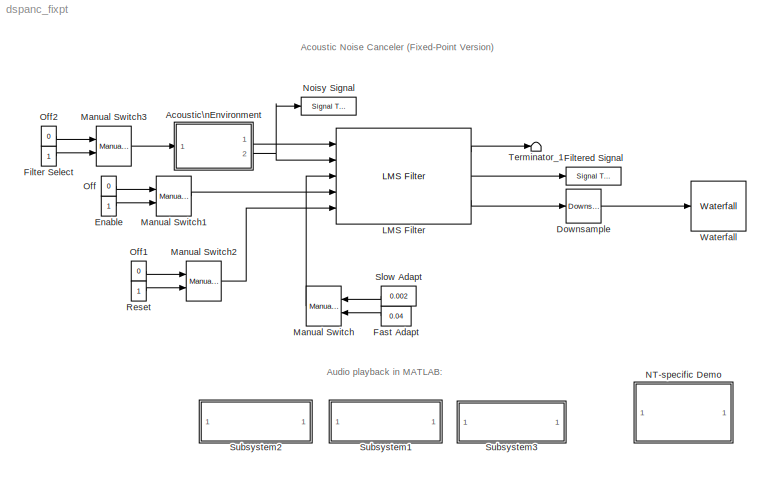
MODEL dspanc_fixpt
KIND model
CONFIG StopFcn = if exist('y_filtered','var'),                                                                      \n    soundsc(y_filtered,8000);                                                           \nelse uiwait(errordlg('You must run the simulation first.','Signal Processing Blockset Demo Error','modal'));\nend
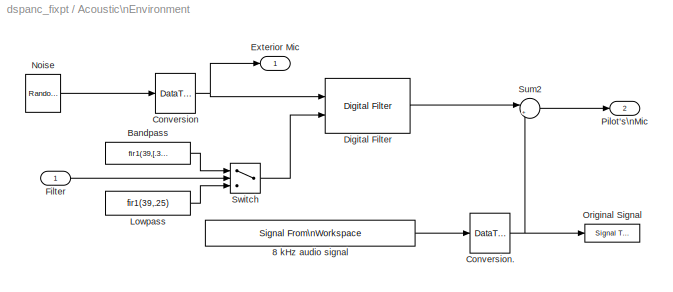
BLOCK [SubSystem] Acoustic\nEnvironment
  MinAlgLoopOccurrences = off
  Ports = [1, 2]
  PropExecContextAcrossSSBoundary = on
  RTWSystemCode = Auto
  TreatAsAtomicUnit = off
BLOCK [Reference] Acoustic\nEnvironment/8 kHz audio signal  REF=dspsrcs4/Signal From\nWorkspace
  OutputAfterFinalValue = Cyclic repetition
  Ports = [0, 1]
  ShowPortLabels = on
  SourceBlock = dspsrcs4/Signal From\nWorkspace
  SourceType = Signal From Workspace
  Ts = 1/8000
  X = int16((2^15)*(wavread('dspafxf_8000.wav')))
  nsamps = 32
BLOCK [Constant] Acoustic\nEnvironment/Bandpass
  OutDataTypeMode = Specify via dialog
  OutScaling = 2^-17
  Value = fir1(39,[.3 .5])
BLOCK [DataTypeConversion] Acoustic\nEnvironment/Conversion
  OutDataTypeMode = Specify via dialog
  OutScaling = 2^-13
  RndMeth = Nearest
  SaturateOnIntegerOverflow = off
BLOCK [DataTypeConversion] Acoustic\nEnvironment/Conversion.
  ConvertRealWorld = Stored Integer (SI)
  OutDataTypeMode = Specify via dialog
  OutScaling = 2^-15
  RndMeth = Nearest
  SaturateOnIntegerOverflow = off
BLOCK [Reference] Acoustic\nEnvironment/Digital Filter  REF=dsparch4/Digital Filter
  AllPoleFiltStruct = Direct form
  BiQuadCoeffs = [1 0.3 0.4 1 0.1 0.2]
  CoeffSource = Input port(s)
  DenCoeffs = [1 0.1]
  DialogController = dspDDGCreate
  DialogControllerArgs = DataTag0
  FIRFiltStruct = Direct form
  FiltPerSampPopup = One filter per frame
  IC = 0
  ICden = 0
  ICnum = 0
  IIRFiltStruct = Direct form II transposed
  LatticeCoeffs = [0.2 0.4]
  NumCoeffs = [1 2]
  Ports = [2, 1]
  ScaleValues = 0
  SourceBlock = dsparch4/Digital Filter
  SourceType = Digital Filter
  TypePopup = FIR (all zeros)
  accumFracLength = 30
  accumMode = Binary point scaling
  accumWordLength = 32
  additionalParams = on
  allowOverrides = on
  denIgnore = on
  firstCoeffFracLength = 15
  firstCoeffMode = Same word length as input
  firstCoeffWordLength = 16
  memoryFracLength = 14
  memoryMode = Same as input
  memoryWordLength = 16
  outputFracLength = 30
  outputMode = Same as input
  outputWordLength = 32
  overflowMode = off
  prodOutputFracLength = 30
  prodOutputMode = Binary point scaling
  prodOutputWordLength = 32
  roundingMode = Nearest
  scaleValueFracLength = 14
  secondCoeffFracLength = 15
  secondCoeffMode = Same as numerator
  secondCoeffWordLength = 16
  showAcc = on
  showCoeff = off
  showMem = off
  showMpy = on
  showOut = on
  stageIOMode = Same as input
  stageIOWordLength = 16
  stageInFracLength = 15
  stageOutFracLength = 15
  tapSumFracLength = 30
  tapSumMode = Same as input
  tapSumWordLength = 32
  thirdCoeffFracLength = 15
  thirdCoeffMode = Same as input
  thirdCoeffWordLength = 16
BLOCK [Outport] Acoustic\nEnvironment/Exterior Mic
  BusOutputAsStruct = off
  IconDisplay = Port number
BLOCK [Inport] Acoustic\nEnvironment/Filter
  IconDisplay = Port number
  LatchInput = off
BLOCK [Constant] Acoustic\nEnvironment/Lowpass
  OutDataTypeMode = Specify via dialog
  OutScaling = 2^-17
  Value = fir1(39,.25)
BLOCK [Reference] Acoustic\nEnvironment/Noise  REF=dspsrcs4/Random\nSource
  CltLength = 5
  DataType = Single
  Diagnostics = AllowInheritedTsInSrc
  Inherit = off
  Max = 1
  Mean = 0
  Min = -1
  NormMethod = Sum of uniform values
  OutComplex = Real
  Ports = [0, 1]
  RepMode = Specify seed
  SampFrame = 32
  SampMode = Discrete
  SampTime = 1/8000
  SourceBlock = dspsrcs4/Random\nSource
  SourceType = Random Source
  SrcType = Gaussian
  Var = 1
  rawSeed = [23341]
BLOCK [Reference] Acoustic\nEnvironment/Original Signal  REF=dspsnks4/Signal To\nWorkspace
  Decimation = 1
  FixptAsFi = off
  FrameMode = Concatenate frames (2-D array)
  MaxDataPoints = inf
  Ports = [1]
  ShowPortLabels = on
  SourceBlock = dspsnks4/Signal To\nWorkspace
  SourceType = Signal To Workspace
  VariableName = y_org
BLOCK [Outport] Acoustic\nEnvironment/Pilot's\nMic
  BusOutputAsStruct = off
  IconDisplay = Port number
  Port = 2
BLOCK [Sum] Acoustic\nEnvironment/Sum2
  IconShape = round
  InputSameDT = off
  Inputs = |++
  Ports = [2, 1]
  RndMeth = Nearest
BLOCK [Switch] Acoustic\nEnvironment/Switch
  Criteria = u2 ~= 0
  InputSameDT = off
BLOCK [Reference] Downsample  REF=dspsigops/Downsample
  N = 32
  Ports = [1, 1]
  SourceBlock = dspsigops/Downsample
  SourceType = Downsample
  fmode = Maintain input frame size
  ic = 0
  phase = 0
  smode = Allow multirate
BLOCK [Constant] Enable
  OutDataTypeMode = boolean
BLOCK [Constant] Fast Adapt
  OutDataTypeMode = Specify via dialog
  OutScaling = 2^-15
  Value = 0.04
BLOCK [Constant] Filter Select
  OutDataTypeMode = boolean
BLOCK [Reference] Filtered Signal  REF=dspsnks4/Signal To\nWorkspace
  Decimation = 1
  FixptAsFi = off
  FrameMode = Concatenate frames (2-D array)
  MaxDataPoints = inf
  Ports = [1]
  ShowPortLabels = on
  SourceBlock = dspsnks4/Signal To\nWorkspace
  SourceType = Signal To Workspace
  VariableName = y_filtered
BLOCK [Reference] LMS Filter  REF=dspadpt3/LMS Filter
  Adapt = on
  Algo = Normalized LMS
  DialogController = dspDDGCreate
  DialogControllerArgs = DataTag1
  L = 40
  Ports = [5, 3]
  ShowPortLabels = off
  SourceBlock = dspadpt3/LMS Filter
  SourceType = LMS Filter
  accum2FracLength = 20
  accum2Mode = User-defined
  accumFracLength = 20
  accumMode = Binary point scaling
  accumWordLength = 32
  addnparflag = off
  firstCoeffFracLength = 16
  firstCoeffMode = Binary point scaling
  firstCoeffWordLength = 16
  ic = 0
  leakage = 1.0
  memoryFracLength = 15
  memoryMode = Binary point scaling
  memoryWordLength = 16
  mu = 0.1
  overflowMode = on
  prodOutput2FracLength = 20
  prodOutput2Mode = Same as first product
  prodOutput3FracLength = 20
  prodOutput3Mode = Same as first product
  prodOutput4FracLength = 20
  prodOutput4Mode = Same as first product
  prodOutputFracLength = 20
  prodOutputMode = Binary point scaling
  prodOutputWordLength = 32
  quotientFracLength = 20
  quotientMode = Same as first product
  resetflag = Non-zero sample
  roundingMode = Nearest
  secondCoeffFracLength = 15
  secondCoeffMode = User-defined
  secondCoeffWordLength = 2
  stepflag = Input port
  weights = on
BLOCK [Reference] Manual Switch  REF=simulink/Signal\nRouting/Manual Switch
  Ports = [2, 1]
  ShowPortLabels = on
  SourceBlock = simulink/Signal\nRouting/Manual Switch
  SourceType = Manual Switch
  action = 0
  sw = 0
BLOCK [Reference] Manual Switch1  REF=simulink/Signal\nRouting/Manual Switch
  Ports = [2, 1]
  ShowPortLabels = on
  SourceBlock = simulink/Signal\nRouting/Manual Switch
  SourceType = Manual Switch
  action = 0
  sw = 0
BLOCK [Reference] Manual Switch2  REF=simulink/Signal\nRouting/Manual Switch
  Ports = [2, 1]
  ShowPortLabels = on
  SourceBlock = simulink/Signal\nRouting/Manual Switch
  SourceType = Manual Switch
  action = 0
  sw = 1
BLOCK [Reference] Manual Switch3  REF=simulink/Signal\nRouting/Manual Switch
  Ports = [2, 1]
  ShowPortLabels = on
  SourceBlock = simulink/Signal\nRouting/Manual Switch
  SourceType = Manual Switch
  action = 0
  sw = 1
BLOCK [SubSystem] NT-specific Demo
  MaskDisplay = disp('PC/Windows\\nDemo')
  MaskIconFrame = on
  MaskIconOpaque = on
  MaskIconRotate = none
  MaskIconUnits = autoscale
  MaskType = NT-only Demo
  MinAlgLoopOccurrences = off
  OpenFcn = dspanc_fixpt_win32
  Ports = []
  PropExecContextAcrossSSBoundary = on
  RTWSystemCode = Auto
  TreatAsAtomicUnit = off
BLOCK [Reference] Noisy Signal  REF=dspsnks4/Signal To\nWorkspace
  Decimation = 1
  FixptAsFi = off
  FrameMode = Concatenate frames (2-D array)
  MaxDataPoints = inf
  Ports = [1]
  ShowPortLabels = on
  SourceBlock = dspsnks4/Signal To\nWorkspace
  SourceType = Signal To Workspace
  VariableName = y_noisy
BLOCK [Constant] Off
  OutDataTypeMode = boolean
  Value = 0
BLOCK [Constant] Off1
  OutDataTypeMode = boolean
  Value = 0
BLOCK [Constant] Off2
  OutDataTypeMode = boolean
  Value = 0
BLOCK [Constant] Reset
  OutDataTypeMode = boolean
BLOCK [Constant] Slow Adapt
  OutDataTypeMode = Specify via dialog
  OutScaling = 2^-15
  Value = 0.002
BLOCK [SubSystem] Subsystem1
  MaskDisplay = disp('Noisy\\nSignal')
  MaskIconFrame = on
  MaskIconOpaque = on
  MaskIconRotate = none
  MaskIconUnits = autoscale
  MinAlgLoopOccurrences = off
  OpenFcn = if exist('y_noisy','var'), soundsc(y_noisy,8000); else uiwait(errordlg('You must run the simulation first.','Signal Processing Blockset Demo Error','modal')); end
  Ports = []
  PropExecContextAcrossSSBoundary = on
  RTWSystemCode = Auto
  TreatAsAtomicUnit = off
BLOCK [SubSystem] Subsystem2
  MaskDisplay = disp('Original\\nSignal')
  MaskIconFrame = on
  MaskIconOpaque = on
  MaskIconRotate = none
  MaskIconUnits = autoscale
  MinAlgLoopOccurrences = off
  OpenFcn = \nif exist('y_org','var'), soundsc(double(y_org)); else uiwait(errordlg('Data not found in workspace - run demo model.','Signal Processing Blockset Demo Error','modal'));end\n                                                                                                                                                                           \n                                                    ...<+294ch>
  Ports = []
  PropExecContextAcrossSSBoundary = on
  RTWSystemCode = Auto
  TreatAsAtomicUnit = off
BLOCK [SubSystem] Subsystem3
  MaskDisplay = disp('Filtered\\nSignal')
  MaskIconFrame = on
  MaskIconOpaque = on
  MaskIconRotate = none
  MaskIconUnits = autoscale
  MinAlgLoopOccurrences = off
  OpenFcn = if exist('y_filtered','var'), soundsc(y_filtered,8000); else uiwait(errordlg('You must run the simulation first.','Signal Processing Blockset Demo Error','modal')); end
  Ports = []
  PropExecContextAcrossSSBoundary = on
  RTWSystemCode = Auto
  TreatAsAtomicUnit = off
BLOCK [Terminator] Terminator_1
BLOCK [Reference] Waterfall  REF=dspsnks4/Waterfall
  AutoExport = off
  AxisColor = 'w'
  AxisGrid = on
  AxisProperties = off
  CMapStr = autumn
  CameraView = [28.5695107359948 1316.8235109177 -294.350451091202 -0.004386576265097 22.5 3.5 0.594111941595966 -49.3321641526923 11.3523452384532 1.12783221137103 1 122.332173767783 16.310956502371]
  DisplayProperties = off
  ExportMode = All visible
  FigPos = [27 57 405 339]
  HistoryFull = Overwrite
  HistoryLength = 50
  InportDimsHint = [40 1]
  MLExportName = ExportData
  MouseMode = Orbit
  NumTraces = 6
  OpenScopeAtSimStart = off
  Ports = [1]
  ShowPortLabels = off
  Snapshot = off
  SourceBlock = dspsnks4/Waterfall
  SourceType = Waterfall
  Suspend = off
  SyncSnapshots = off
  TNewest = 0.9
  TOldest = 0.5
  TraceProperties = off
  TrigRearmFcn = trigrearm
  TrigRearmMode = Never
  TrigRearmN = 0
  TrigRearmT = 0
  TrigStartFcn = trigbegin
  TrigStartMode = Immediately
  TrigStartN = 0
  TrigStartT = 0
  TrigStopFcn = trigend
  TrigStopMode = Never
  TrigStopN = 1
  TrigStopT = 0.1
  TriggerProperties = off
  UpdateInterval = 1
  XLabel = Amplitude
  XformExpr = (u+1)/2
  XformFcn = abs
  XformMode = None
  XformProperties = on
  YLabel = Samples
  YMax = 0.17953887283802
  YMin = -0.188312025368214
  ZLabel = Time
ANNOTATION (root): Audio playback in MATLAB:
ANNOTATION (root): Acoustic Noise Canceler (Fixed-Point Version)
LINE Acoustic\nEnvironment/8 kHz audio signal:1 -> Acoustic\nEnvironment/Conversion.:1
LINE Acoustic\nEnvironment/Bandpass:1 -> Acoustic\nEnvironment/Switch:1
NET Acoustic\nEnvironment/Conversion.:1 -> Acoustic\nEnvironment/Original Signal:1, Acoustic\nEnvironment/Sum2:2
NET Acoustic\nEnvironment/Conversion:1 -> Acoustic\nEnvironment/Digital Filter:1, Acoustic\nEnvironment/Exterior Mic:1
LINE Acoustic\nEnvironment/Digital Filter:1 -> Acoustic\nEnvironment/Sum2:1
LINE Acoustic\nEnvironment/Filter:1 -> Acoustic\nEnvironment/Switch:2
LINE Acoustic\nEnvironment/Lowpass:1 -> Acoustic\nEnvironment/Switch:3
LINE Acoustic\nEnvironment/Noise:1 -> Acoustic\nEnvironment/Conversion:1
LINE Acoustic\nEnvironment/Sum2:1 -> Acoustic\nEnvironment/Pilot's\nMic:1
LINE Acoustic\nEnvironment/Switch:1 -> Acoustic\nEnvironment/Digital Filter:2
LINE Acoustic\nEnvironment:1 -> LMS Filter:1
NET Acoustic\nEnvironment:2 -> LMS Filter:2, Noisy Signal:1
LINE Downsample:1 -> Waterfall:1
LINE Enable:1 -> Manual Switch1:2
LINE Fast Adapt:1 -> Manual Switch:2
LINE Filter Select:1 -> Manual Switch3:2
LINE LMS Filter:1 -> Terminator_1:1
LINE LMS Filter:2 -> Filtered Signal:1
LINE LMS Filter:3 -> Downsample:1
LINE Manual Switch1:1 -> LMS Filter:4
LINE Manual Switch2:1 -> LMS Filter:5
LINE Manual Switch3:1 -> Acoustic\nEnvironment:1
LINE Manual Switch:1 -> LMS Filter:3
LINE Off1:1 -> Manual Switch2:1
LINE Off2:1 -> Manual Switch3:1
LINE Off:1 -> Manual Switch1:1
LINE Reset:1 -> Manual Switch2:2
LINE Slow Adapt:1 -> Manual Switch:1
note: NET lines group one-source signal fan-out (src -> all destinations, sorted); 1:1 wires keep LINE
